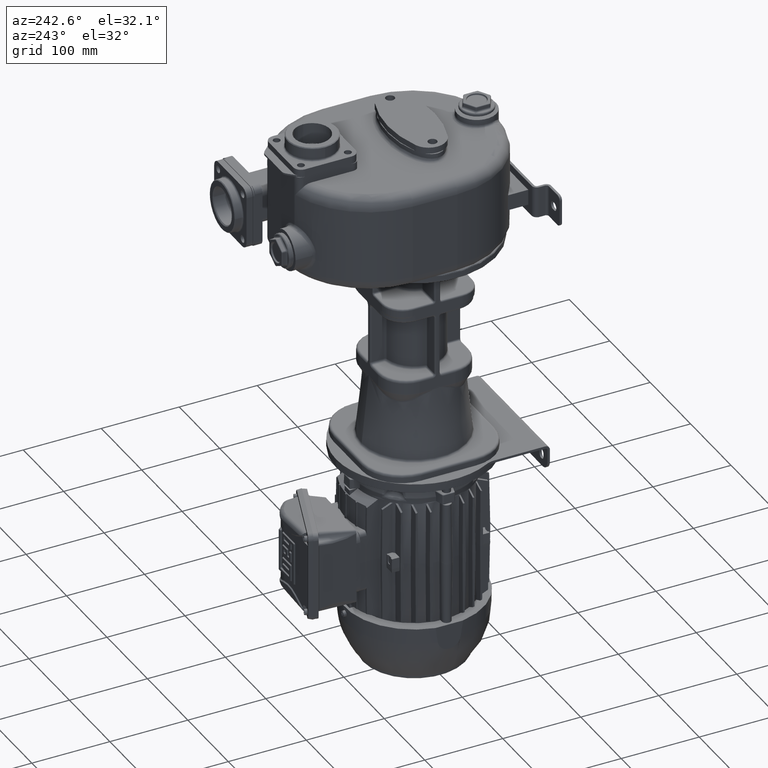
[diagram: clean part render]
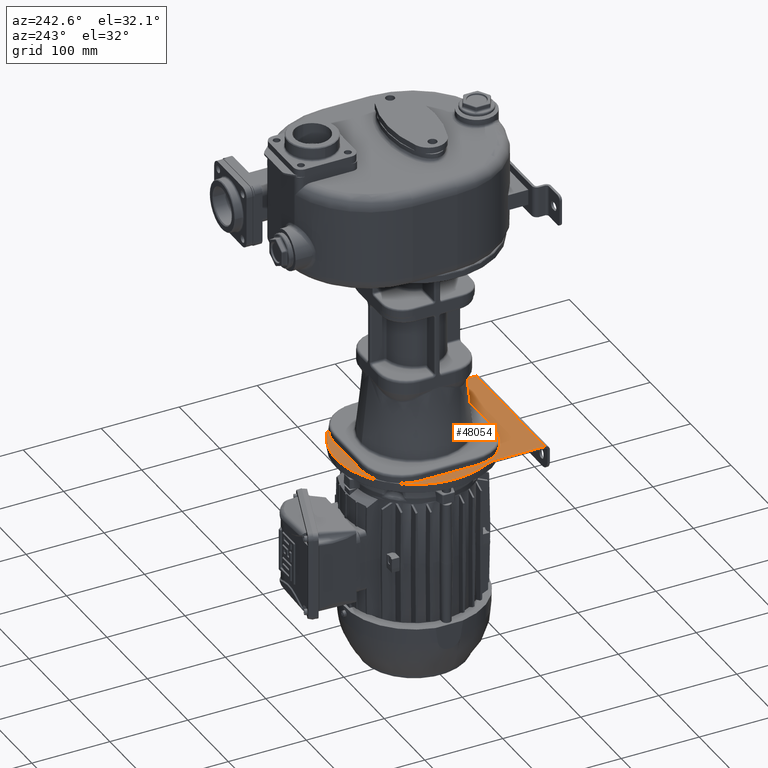
[diagram: same view with one face highlighted and labeled with its STEP entity id]
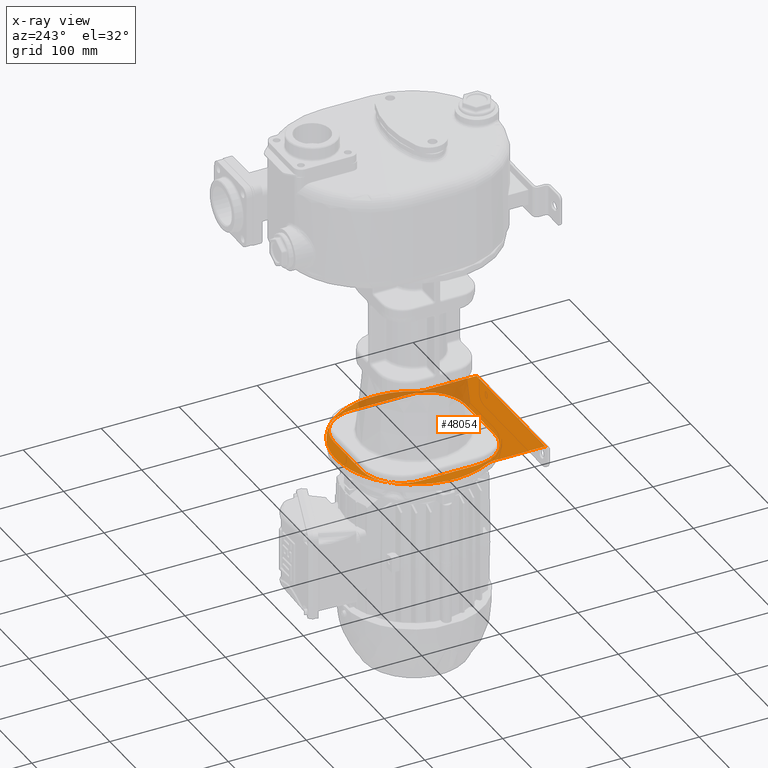
[diagram: x-ray of the same camera — body ghosted, the highlighted face saturated]
A machine part, auxiliary view. The second image highlights one B-rep face of the part: STEP entity #48054.
The next image is the same camera in x-ray: the body ghosted, the highlighted face saturated — about 20% of this face is hidden behind the body in this view.
In plain terms, the highlighted planar face has unit normal (0, 0, -1).
Its self-contained STEP definition (entity closure, byte-faithful):
#4048=CARTESIAN_POINT('',(-1.05E2,5.190524980689E1,-3.305E2));
#4049=DIRECTION('',(0.E0,0.E0,-1.E0));
#4050=DIRECTION('',(8.75E-1,4.841229182759E-1,0.E0));
#4051=AXIS2_PLACEMENT_3D('',#4048,#4049,#4050);
#4053=CARTESIAN_POINT('',(1.350362312003E-14,1.1E2,-3.305E2));
#4054=DIRECTION('',(0.E0,0.E0,-1.E0));
#4055=DIRECTION('',(-8.75E-1,-4.841229182759E-1,0.E0));
#4056=AXIS2_PLACEMENT_3D('',#4053,#4054,#4055);
#4058=DIRECTION('',(0.E0,-1.E0,0.E0));
#4059=VECTOR('',#4058,6.590524980689E1);
#4060=CARTESIAN_POINT('',(8.5E1,5.190524980689E1,-3.305E2));
#4061=LINE('',#4060,#4059);
#4062=DIRECTION('',(0.E0,1.E0,0.E0));
#4063=VECTOR('',#4062,6.590524980689E1);
#4064=CARTESIAN_POINT('',(-8.5E1,-1.4E1,-3.305E2));
#4065=LINE('',#4064,#4063);
#4071=CARTESIAN_POINT('',(1.05E2,5.190524980689E1,-3.305E2));
#4072=DIRECTION('',(0.E0,0.E0,-1.E0));
#4073=DIRECTION('',(-1.E0,0.E0,0.E0));
#4074=AXIS2_PLACEMENT_3D('',#4071,#4072,#4073);
#4093=DIRECTION('',(1.E0,0.E0,0.E0));
#4094=VECTOR('',#4093,1.7E2);
#4095=CARTESIAN_POINT('',(-8.5E1,-1.4E1,-3.305E2));
#4096=LINE('',#4095,#4094);
#4300=CARTESIAN_POINT('',(3.5E1,1.45E2,-3.305E2));
#4301=DIRECTION('',(0.E0,0.E0,1.E0));
#4302=DIRECTION('',(1.E0,2.444267011015E-14,0.E0));
#4303=AXIS2_PLACEMENT_3D('',#4300,#4301,#4302);
#4314=DIRECTION('',(0.E0,1.E0,0.E0));
#4315=VECTOR('',#4314,7.E1);
#4316=CARTESIAN_POINT('',(8.5E1,7.5E1,-3.305E2));
#4317=LINE('',#4316,#4315);
#4326=CARTESIAN_POINT('',(3.5E1,7.5E1,-3.305E2));
#4327=DIRECTION('',(0.E0,0.E0,1.E0));
#4328=DIRECTION('',(-2.245315045002E-14,-1.E0,0.E0));
#4329=AXIS2_PLACEMENT_3D('',#4326,#4327,#4328);
#4340=DIRECTION('',(1.E0,0.E0,0.E0));
#4341=VECTOR('',#4340,7.E1);
#4342=CARTESIAN_POINT('',(-3.5E1,2.5E1,-3.305E2));
#4343=LINE('',#4342,#4341);
#4352=CARTESIAN_POINT('',(-3.5E1,7.5E1,-3.305E2));
#4353=DIRECTION('',(0.E0,0.E0,1.E0));
#4354=DIRECTION('',(-1.E0,0.E0,0.E0));
#4355=AXIS2_PLACEMENT_3D('',#4352,#4353,#4354);
#4366=DIRECTION('',(0.E0,-1.E0,0.E0));
#4367=VECTOR('',#4366,7.E1);
#4368=CARTESIAN_POINT('',(-8.5E1,1.45E2,-3.305E2));
#4369=LINE('',#4368,#4367);
#4378=CARTESIAN_POINT('',(-3.5E1,1.45E2,-3.305E2));
#4379=DIRECTION('',(0.E0,0.E0,1.E0));
#4380=DIRECTION('',(-4.718003765447E-14,1.E0,0.E0));
#4381=AXIS2_PLACEMENT_3D('',#4378,#4379,#4380);
#4392=DIRECTION('',(-1.E0,0.E0,0.E0));
#4393=VECTOR('',#4392,7.E1);
#4394=CARTESIAN_POINT('',(3.5E1,1.95E2,-3.305E2));
#4395=LINE('',#4394,#4393);
#39864=CARTESIAN_POINT('',(8.5E1,5.190524980689E1,-3.305E2));
#39865=CARTESIAN_POINT('',(8.5E1,-1.4E1,-3.305E2));
#39866=VERTEX_POINT('',#39864);
#39867=VERTEX_POINT('',#39865);
#39872=CARTESIAN_POINT('',(-8.5E1,-1.4E1,-3.305E2));
#39873=CARTESIAN_POINT('',(-8.5E1,5.190524980689E1,-3.305E2));
#39874=VERTEX_POINT('',#39872);
#39875=VERTEX_POINT('',#39873);
#39880=CARTESIAN_POINT('',(-8.75E1,6.158770817241E1,-3.305E2));
#39881=VERTEX_POINT('',#39880);
#39882=CARTESIAN_POINT('',(8.75E1,6.158770817241E1,-3.305E2));
#39883=VERTEX_POINT('',#39882);
#39884=CARTESIAN_POINT('',(8.5E1,1.45E2,-3.305E2));
#39885=CARTESIAN_POINT('',(3.5E1,1.95E2,-3.305E2));
#39886=VERTEX_POINT('',#39884);
#39887=VERTEX_POINT('',#39885);
#39888=CARTESIAN_POINT('',(-3.5E1,1.95E2,-3.305E2));
#39889=VERTEX_POINT('',#39888);
#39890=CARTESIAN_POINT('',(-8.5E1,1.45E2,-3.305E2));
#39891=VERTEX_POINT('',#39890);
#39892=CARTESIAN_POINT('',(-8.5E1,7.5E1,-3.305E2));
#39893=VERTEX_POINT('',#39892);
#39894=CARTESIAN_POINT('',(-3.5E1,2.5E1,-3.305E2));
#39895=VERTEX_POINT('',#39894);
#39896=CARTESIAN_POINT('',(3.5E1,2.5E1,-3.305E2));
#39897=VERTEX_POINT('',#39896);
#39898=CARTESIAN_POINT('',(8.5E1,7.5E1,-3.305E2));
#39899=VERTEX_POINT('',#39898);
#48019=CARTESIAN_POINT('',(1.350362312003E-14,1.1E2,-3.305E2));
#48020=DIRECTION('',(0.E0,0.E0,-1.E0));
#48021=DIRECTION('',(-1.E0,0.E0,0.E0));
#48022=AXIS2_PLACEMENT_3D('',#48019,#48020,#48021);
#48023=PLANE('',#48022);
#48024=ORIENTED_EDGE('',*,*,#47964,.T.);
#48026=ORIENTED_EDGE('',*,*,#48025,.F.);
#48028=ORIENTED_EDGE('',*,*,#48027,.T.);
#48030=ORIENTED_EDGE('',*,*,#48029,.F.);
#48032=ORIENTED_EDGE('',*,*,#48031,.T.);
#48033=ORIENTED_EDGE('',*,*,#48012,.F.);
#48034=EDGE_LOOP('',(#48024,#48026,#48028,#48030,#48032,#48033));
#48035=FACE_OUTER_BOUND('',#48034,.F.);
#48037=ORIENTED_EDGE('',*,*,#48036,.T.);
#48039=ORIENTED_EDGE('',*,*,#48038,.T.);
#48041=ORIENTED_EDGE('',*,*,#48040,.T.);
#48043=ORIENTED_EDGE('',*,*,#48042,.T.);
#48045=ORIENTED_EDGE('',*,*,#48044,.T.);
#48047=ORIENTED_EDGE('',*,*,#48046,.T.);
#48049=ORIENTED_EDGE('',*,*,#48048,.T.);
#48051=ORIENTED_EDGE('',*,*,#48050,.T.);
#48052=EDGE_LOOP('',(#48037,#48039,#48041,#48043,#48045,#48047,#48049,#48051));
#48053=FACE_BOUND('',#48052,.F.);
#48054=ADVANCED_FACE('',(#48035,#48053),#48023,.F.);
#4052=CIRCLE('',#4051,2.E1);
#4057=CIRCLE('',#4056,1.E2);
#4075=CIRCLE('',#4074,2.E1);
#4304=CIRCLE('',#4303,5.E1);
#4330=CIRCLE('',#4329,5.E1);
#4356=CIRCLE('',#4355,5.E1);
#4382=CIRCLE('',#4381,5.E1);
#47964=EDGE_CURVE('',#39881,#39883,#4057,.T.);
#48012=EDGE_CURVE('',#39881,#39875,#4052,.T.);
#48025=EDGE_CURVE('',#39866,#39883,#4075,.T.);
#48027=EDGE_CURVE('',#39866,#39867,#4061,.T.);
#48029=EDGE_CURVE('',#39874,#39867,#4096,.T.);
#48031=EDGE_CURVE('',#39874,#39875,#4065,.T.);
#48036=EDGE_CURVE('',#39886,#39887,#4304,.T.);
#48038=EDGE_CURVE('',#39887,#39889,#4395,.T.);
#48040=EDGE_CURVE('',#39889,#39891,#4382,.T.);
#48042=EDGE_CURVE('',#39891,#39893,#4369,.T.);
#48044=EDGE_CURVE('',#39893,#39895,#4356,.T.);
#48046=EDGE_CURVE('',#39895,#39897,#4343,.T.);
#48048=EDGE_CURVE('',#39897,#39899,#4330,.T.);
#48050=EDGE_CURVE('',#39899,#39886,#4317,.T.);